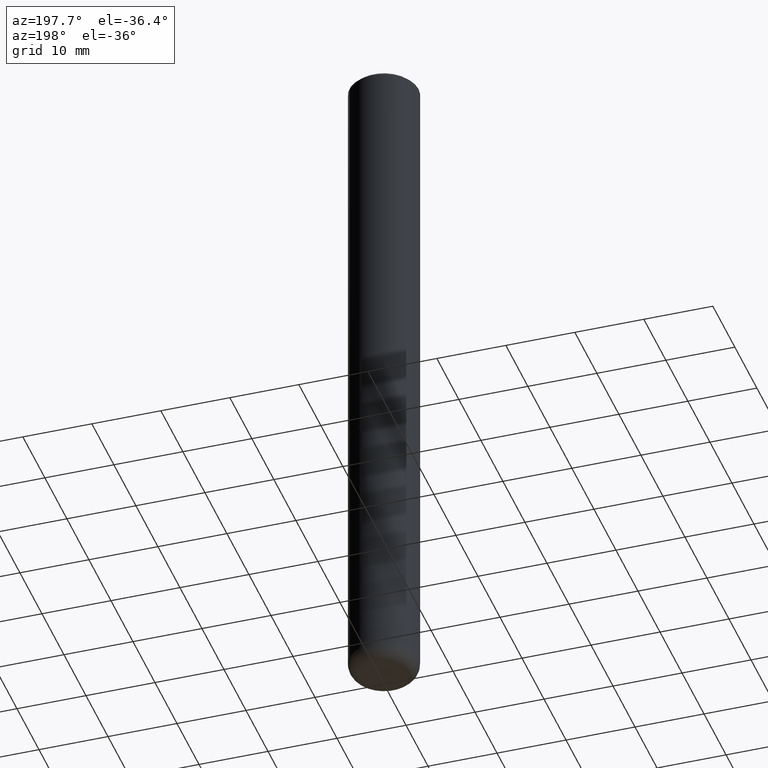
[diagram: clean part render]
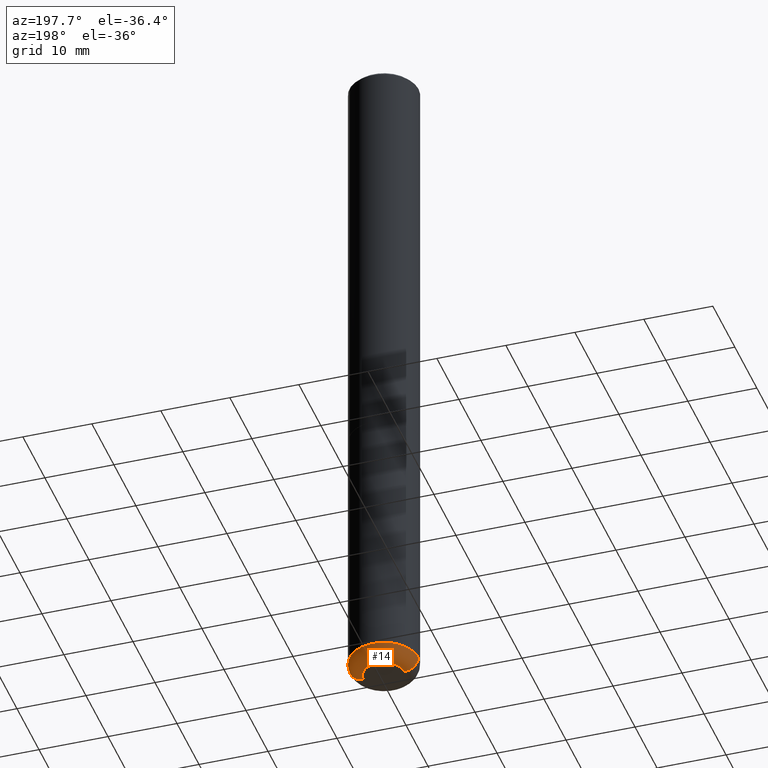
[diagram: same view with one face highlighted and labeled with its STEP entity id]
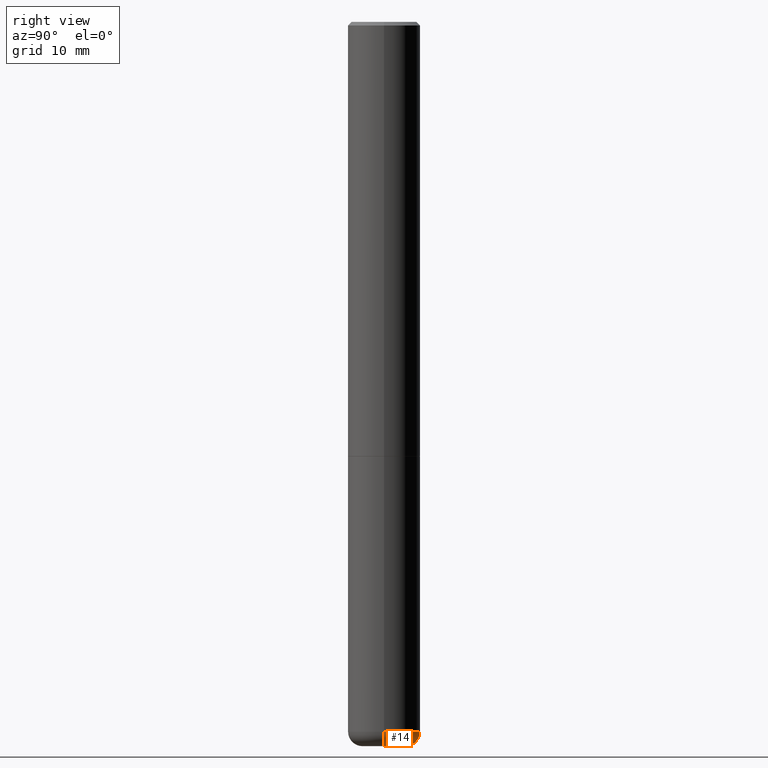
[diagram: same view with one face highlighted and labeled with its STEP entity id]
A machine part, auxiliary view. The second image highlights one B-rep face of the part: STEP entity #14.
A second angle (right view) of the same face is appended — the face is thin or edge-on in the first view.
In plain terms, the highlighted toroidal blend (fillet) surface has major radius 3.001 mm and minor (blend) radius 1.999 mm.
Its self-contained STEP definition (entity closure, byte-faithful):
#1 = VERTEX_POINT ( 'NONE', #211 ) ;
#2 = DIRECTION ( 'NONE',  ( 1.000000000000000000, -6.982962677686269077E-15, 4.883557194083113462E-29 ) ) ;
#12 = DIRECTION ( 'NONE',  ( 7.105427357601001859E-15, 1.000000000000000000, -3.491481338843145583E-15 ) ) ;
#14 = ADVANCED_FACE ( 'NONE', ( #66 ), #151, .T. ) ;
#35 = ORIENTED_EDGE ( 'NONE', *, *, #182, .T. ) ;
#38 = ORIENTED_EDGE ( 'NONE', *, *, #139, .F. ) ;
#43 = ORIENTED_EDGE ( 'NONE', *, *, #299, .T. ) ;
#45 = EDGE_CURVE ( 'NONE', #239, #341, #165, .T. ) ;
#59 = CIRCLE ( 'NONE', #114, 0.07869999999999970075 ) ;
#66 = FACE_OUTER_BOUND ( 'NONE', #325, .T. ) ;
#82 = AXIS2_PLACEMENT_3D ( 'NONE', #330, #394, #133 ) ;
#92 = AXIS2_PLACEMENT_3D ( 'NONE', #147, #227, #363 ) ;
#98 = AXIS2_PLACEMENT_3D ( 'NONE', #380, #213, #2 ) ;
#99 = VERTEX_POINT ( 'NONE', #116 ) ;
#114 = AXIS2_PLACEMENT_3D ( 'NONE', #190, #12, #202 ) ;
#116 = CARTESIAN_POINT ( 'NONE',  ( -0.1968499999999998307, -1.207247907431475308E-14, -3.858300000000000285 ) ) ;
#123 = DIRECTION ( 'NONE',  ( 1.000000000000000000, -6.982962677686271444E-15, 0.000000000000000000 ) ) ;
#125 = DIRECTION ( 'NONE',  ( -6.982962677686266711E-15, -1.000000000000000000, 3.491481338843145583E-15 ) ) ;
#133 = DIRECTION ( 'NONE',  ( 1.000000000000000000, -6.982962677686265922E-15, 0.000000000000000000 ) ) ;
#139 = EDGE_CURVE ( 'NONE', #341, #99, #268, .T. ) ;
#147 = CARTESIAN_POINT ( 'NONE',  ( 9.435352294904112142E-29, -1.347118244965850850E-14, -3.858300000000000285 ) ) ;
#151 = TOROIDAL_SURFACE ( 'NONE', #98, 0.1181500000000000050, 0.07869999999999967299 ) ;
#165 = CIRCLE ( 'NONE', #296, 0.07869999999999970075 ) ;
#182 = EDGE_CURVE ( 'NONE', #1, #99, #59, .T. ) ;
#190 = CARTESIAN_POINT ( 'NONE',  ( -0.1181500000000000050, -1.263167620735795029E-14, -3.858300000000000285 ) ) ;
#202 = DIRECTION ( 'NONE',  ( -1.000000000000000000, 7.105427357600995548E-15, 0.000000000000000000 ) ) ;
#211 = CARTESIAN_POINT ( 'NONE',  ( -0.1181500000000000189, -1.248946743151982756E-14, -3.936999999999999389 ) ) ;
#213 = DIRECTION ( 'NONE',  ( -2.445468806185136597E-29, 3.491481338843145583E-15, 1.000000000000000000 ) ) ;
#227 = DIRECTION ( 'NONE',  ( -2.445468806185136597E-29, 3.491481338843145583E-15, 1.000000000000000000 ) ) ;
#239 = VERTEX_POINT ( 'NONE', #362 ) ;
#248 = CIRCLE ( 'NONE', #82, 0.1181500000000000189 ) ;
#268 = CIRCLE ( 'NONE', #92, 0.1968500000000000250 ) ;
#296 = AXIS2_PLACEMENT_3D ( 'NONE', #416, #125, #123 ) ;
#299 = EDGE_CURVE ( 'NONE', #239, #1, #248, .T. ) ;
#325 = EDGE_LOOP ( 'NONE', ( #43, #35, #38, #356 ) ) ;
#330 = CARTESIAN_POINT ( 'NONE',  ( 9.627810689950881427E-29, -1.374596203102546184E-14, -3.936999999999999389 ) ) ;
#341 = VERTEX_POINT ( 'NONE', #402 ) ;
#356 = ORIENTED_EDGE ( 'NONE', *, *, #45, .F. ) ;
#362 = CARTESIAN_POINT ( 'NONE',  ( 0.1181500000000000189, -1.457099907139409361E-14, -3.936999999999999389 ) ) ;
#363 = DIRECTION ( 'NONE',  ( 1.000000000000000000, -6.982962677686267499E-15, 0.000000000000000000 ) ) ;
#380 = CARTESIAN_POINT ( 'NONE',  ( 9.435352294904112142E-29, -1.347118244965850850E-14, -3.858300000000000285 ) ) ;
#394 = DIRECTION ( 'NONE',  ( -2.445468806185136597E-29, 3.491481338843145583E-15, 1.000000000000000000 ) ) ;
#402 = CARTESIAN_POINT ( 'NONE',  ( 0.1968499999999998307, -1.484577865276104695E-14, -3.858300000000000285 ) ) ;
#416 = CARTESIAN_POINT ( 'NONE',  ( 0.1181500000000000050, -1.429621949002714027E-14, -3.858300000000000285 ) ) ;